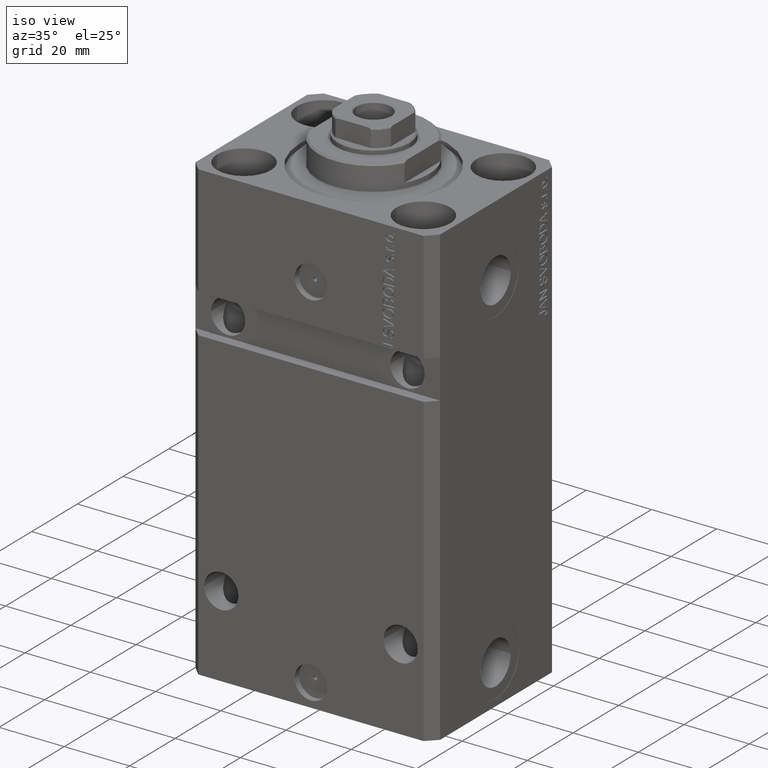
[diagram: clean part render]
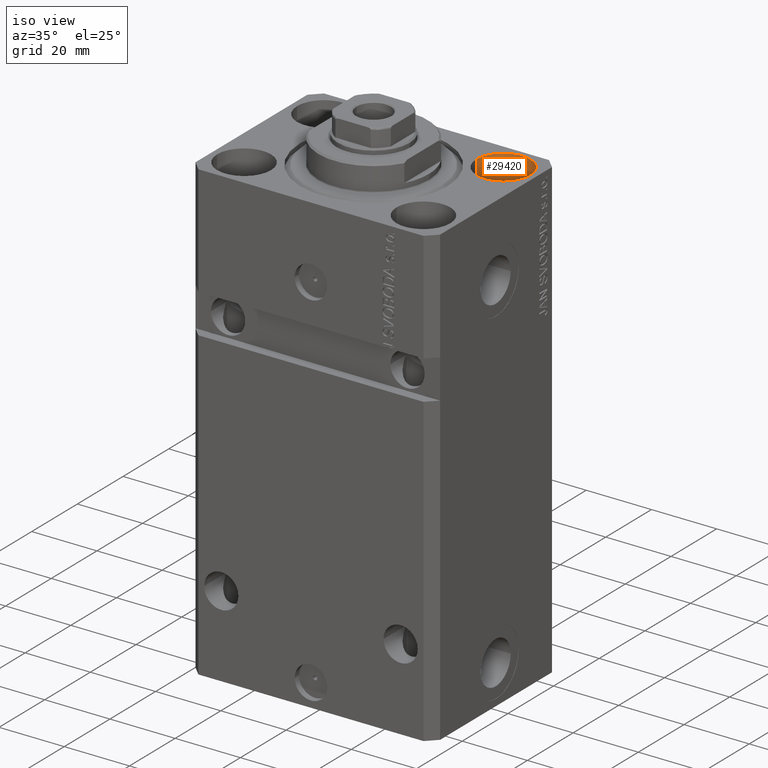
[diagram: same view with one face highlighted and labeled with its STEP entity id]
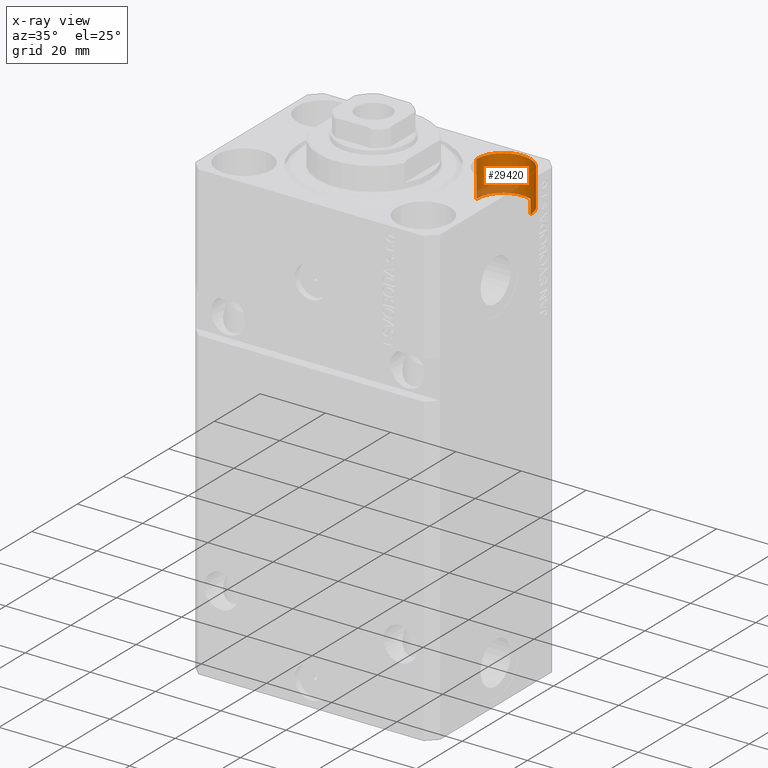
[diagram: x-ray of the same camera — body ghosted, the highlighted face saturated]
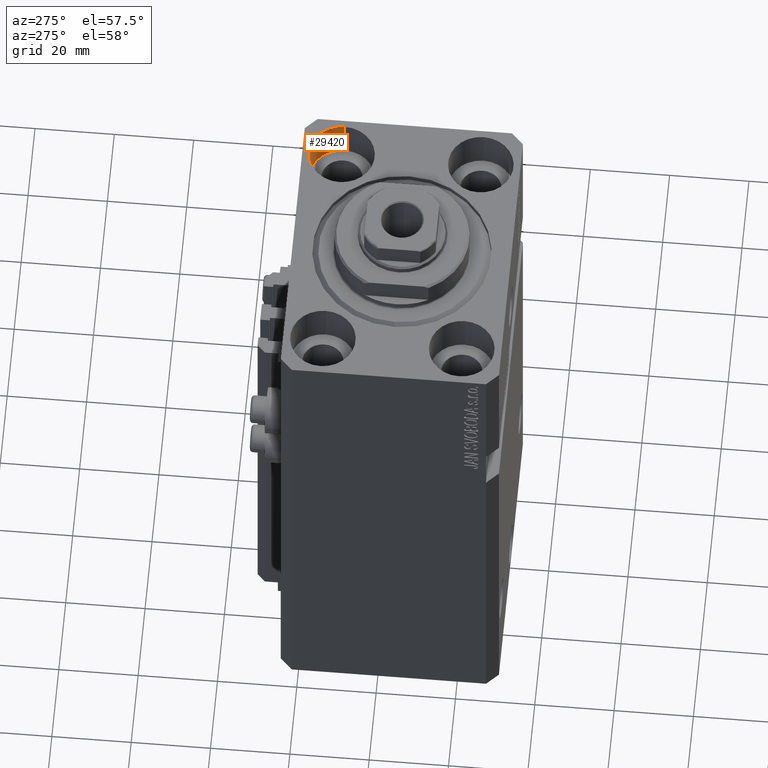
[diagram: same view with one face highlighted and labeled with its STEP entity id]
A machine part, iso view. The second image highlights one B-rep face of the part: STEP entity #29420.
The next image is the same camera in x-ray: the body ghosted, the highlighted face saturated — about 14% of this face is hidden behind the body in this view.
A second angle (auxiliary view) of the same face is appended — the face is thin or edge-on in the first view.
In plain terms, the highlighted cylindrical surface (edge-blend (fillet) strip) has radius 8.25 mm, axis along (0, 0, 1).
Its self-contained STEP definition (entity closure, byte-faithful):
#1487 = DIRECTION ( 'NONE',  ( 1.000000000000000000, 0.000000000000000000, 0.000000000000000000 ) ) ;
#3880 = CARTESIAN_POINT ( 'NONE',  ( 19.25000000000000000, 17.50000000000001066, 0.000000000000000000 ) ) ;
#4555 = EDGE_LOOP ( 'NONE', ( #4671, #41441, #26626, #25339 ) ) ;
#4671 = ORIENTED_EDGE ( 'NONE', *, *, #30066, .F. ) ;
#4982 = VECTOR ( 'NONE', #31102, 1000.000000000000000 ) ;
#6066 = DIRECTION ( 'NONE',  ( 1.000000000000000000, 0.000000000000000000, 0.000000000000000000 ) ) ;
#6311 = CYLINDRICAL_SURFACE ( 'NONE', #14179, 8.249999999999992895 ) ;
#7931 = CIRCLE ( 'NONE', #13303, 8.249999999999992895 ) ;
#7946 = VERTEX_POINT ( 'NONE', #3880 ) ;
#9591 = VECTOR ( 'NONE', #29134, 1000.000000000000000 ) ;
#10604 = CARTESIAN_POINT ( 'NONE',  ( 35.74999999999999289, 17.50000000000001066, 0.000000000000000000 ) ) ;
#13185 = CARTESIAN_POINT ( 'NONE',  ( 27.49999999999999645, 17.50000000000001066, 0.000000000000000000 ) ) ;
#13253 = CARTESIAN_POINT ( 'NONE',  ( 27.49999999999999645, 17.50000000000001066, -11.00000000000000000 ) ) ;
#13303 = AXIS2_PLACEMENT_3D ( 'NONE', #13185, #41239, #1487 ) ;
#13477 = DIRECTION ( 'NONE',  ( 1.000000000000000000, 0.000000000000000000, 0.000000000000000000 ) ) ;
#14179 = AXIS2_PLACEMENT_3D ( 'NONE', #13253, #42020, #6066 ) ;
#14532 = CARTESIAN_POINT ( 'NONE',  ( 35.74999999999999289, 17.50000000000001066, -11.00000000000000000 ) ) ;
#16278 = CIRCLE ( 'NONE', #39983, 8.249999999999992895 ) ;
#23439 = CARTESIAN_POINT ( 'NONE',  ( 19.25000000000000000, 17.50000000000001066, -11.00000000000000000 ) ) ;
#25339 = ORIENTED_EDGE ( 'NONE', *, *, #40868, .T. ) ;
#26557 = EDGE_CURVE ( 'NONE', #37849, #29523, #44247, .T. ) ;
#26626 = ORIENTED_EDGE ( 'NONE', *, *, #26557, .T. ) ;
#29134 = DIRECTION ( 'NONE',  ( -0.000000000000000000, -0.000000000000000000, 1.000000000000000000 ) ) ;
#29420 = ADVANCED_FACE ( 'NONE', ( #39124 ), #6311, .F. ) ;
#29523 = VERTEX_POINT ( 'NONE', #10604 ) ;
#29705 = CARTESIAN_POINT ( 'NONE',  ( 35.74999999999999289, 17.50000000000001066, -11.00000000000000000 ) ) ;
#30066 = EDGE_CURVE ( 'NONE', #33410, #7946, #39431, .T. ) ;
#31102 = DIRECTION ( 'NONE',  ( -0.000000000000000000, -0.000000000000000000, 1.000000000000000000 ) ) ;
#33410 = VERTEX_POINT ( 'NONE', #23439 ) ;
#34804 = DIRECTION ( 'NONE',  ( 0.000000000000000000, 0.000000000000000000, 1.000000000000000000 ) ) ;
#35824 = CARTESIAN_POINT ( 'NONE',  ( 19.25000000000000000, 17.50000000000001066, -11.00000000000000000 ) ) ;
#37849 = VERTEX_POINT ( 'NONE', #29705 ) ;
#38953 = EDGE_CURVE ( 'NONE', #37849, #33410, #16278, .T. ) ;
#39124 = FACE_OUTER_BOUND ( 'NONE', #4555, .T. ) ;
#39431 = LINE ( 'NONE', #35824, #4982 ) ;
#39983 = AXIS2_PLACEMENT_3D ( 'NONE', #46313, #34804, #13477 ) ;
#40868 = EDGE_CURVE ( 'NONE', #29523, #7946, #7931, .T. ) ;
#41239 = DIRECTION ( 'NONE',  ( 0.000000000000000000, 0.000000000000000000, 1.000000000000000000 ) ) ;
#41441 = ORIENTED_EDGE ( 'NONE', *, *, #38953, .F. ) ;
#42020 = DIRECTION ( 'NONE',  ( -0.000000000000000000, -0.000000000000000000, 1.000000000000000000 ) ) ;
#44247 = LINE ( 'NONE', #14532, #9591 ) ;
#46313 = CARTESIAN_POINT ( 'NONE',  ( 27.49999999999999645, 17.50000000000001066, -11.00000000000000000 ) ) ;